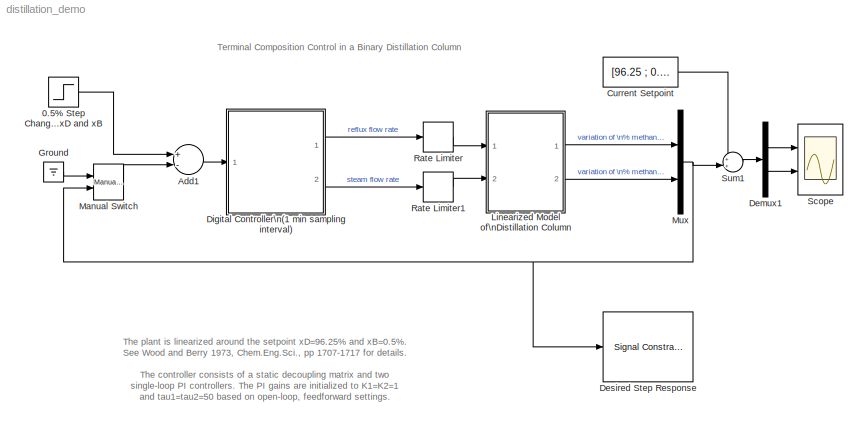
MODEL distillation_demo
KIND model
CONFIG PreLoadFcn = load distillation_demo
BLOCK [Step] 0.5% Step Change\nin xD and xB
  After = 0.5
  SampleTime = 0
  Time = 0
BLOCK [Sum] Add1
  InputSameDT = off
  Inputs = +-
  OutDataTypeMode = Inherit via internal rule
  OutScaling = 2^-10
  Ports = [2, 1]
  SaturateOnIntegerOverflow = off
BLOCK [Constant] Current Setpoint
  SampleTime = 0
  Value = [96.25 ; 0.5]
BLOCK [Demux] Demux1
  DisplayOption = bar
  Outputs = 2
  Ports = [1, 2]
BLOCK [Reference] Desired Step Response  REF=srolib/Signal Constraint  (lib defined in mdl_d992e5ea460a)
  DialogPosition = [0.040625 0.309166666666667 0.39 0.278333333333333]
  LogID = SRO_DataLog_1
  Ports = [1]
  SaveAs = distillation_optim
  SaveIn = workspace
  ShowPortLabels = on
  SourceBlock = srolib/Signal Constraint
  SourceType = Signal Constraint
  Ylim = [-0.2 0.8]
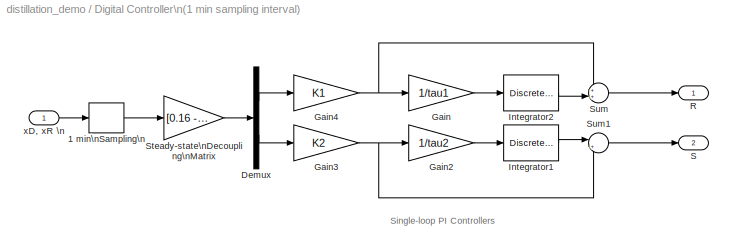
BLOCK [SubSystem] Digital Controller\n(1 min sampling interval)
  MinAlgLoopOccurrences = off
  Ports = [1, 2]
  PropExecContextAcrossSSBoundary = on
  RTWSystemCode = Auto
  TreatAsAtomicUnit = off
BLOCK [ZeroOrderHold] Digital Controller\n(1 min sampling interval)/1 min\nSampling\n
BLOCK [Demux] Digital Controller\n(1 min sampling interval)/Demux
  DisplayOption = bar
  Outputs = 2
  Ports = [1, 2]
BLOCK [Gain] Digital Controller\n(1 min sampling interval)/Gain
  Gain = 1/tau1
  OutDataTypeMode = Inherit via internal rule
  ParameterDataTypeMode = Inherit via internal rule
  SaturateOnIntegerOverflow = off
BLOCK [Gain] Digital Controller\n(1 min sampling interval)/Gain2
  Gain = 1/tau2
  OutDataTypeMode = Inherit via internal rule
  ParameterDataTypeMode = Inherit via internal rule
  SaturateOnIntegerOverflow = off
BLOCK [Gain] Digital Controller\n(1 min sampling interval)/Gain3
  Gain = K2
  OutDataTypeMode = Inherit via internal rule
  ParameterDataTypeMode = Inherit via internal rule
  SaturateOnIntegerOverflow = off
BLOCK [Gain] Digital Controller\n(1 min sampling interval)/Gain4
  Gain = K1
  OutDataTypeMode = Inherit via internal rule
  ParameterDataTypeMode = Inherit via internal rule
  SaturateOnIntegerOverflow = off
BLOCK [DiscreteIntegrator] Digital Controller\n(1 min sampling interval)/Integrator1
  ExternalReset = none
  ICPrevOutput = DiscIntNeverNeededParam
  ICPrevScaledInput = DiscIntNeverNeededParam
  InitialConditionSource = internal
  IntegratorMethod = Integration: Trapezoidal
  Ports = [1, 1]
  SaturateOnIntegerOverflow = on
BLOCK [DiscreteIntegrator] Digital Controller\n(1 min sampling interval)/Integrator2
  ExternalReset = none
  ICPrevOutput = DiscIntNeverNeededParam
  ICPrevScaledInput = DiscIntNeverNeededParam
  InitialConditionSource = internal
  IntegratorMethod = Integration: Trapezoidal
  Ports = [1, 1]
  SaturateOnIntegerOverflow = on
BLOCK [Outport] Digital Controller\n(1 min sampling interval)/R
  BusOutputAsStruct = off
  IconDisplay = Port number
BLOCK [Outport] Digital Controller\n(1 min sampling interval)/S
  BusOutputAsStruct = off
  IconDisplay = Port number
  Port = 2
BLOCK [Gain] Digital Controller\n(1 min sampling interval)/Steady-state\nDecoupling\nMatrix
  Gain = [0.16 -0.15 ; 0.05 -0.1]
  Multiplication = Matrix(K*u)
  OutDataTypeMode = Inherit via internal rule
  ParameterDataTypeMode = Inherit via internal rule
  SaturateOnIntegerOverflow = off
BLOCK [Sum] Digital Controller\n(1 min sampling interval)/Sum
  IconShape = round
  InputSameDT = off
  Inputs = ++|
  OutDataTypeMode = Inherit via internal rule
  Ports = [2, 1]
  SaturateOnIntegerOverflow = off
BLOCK [Sum] Digital Controller\n(1 min sampling interval)/Sum1
  IconShape = round
  InputSameDT = off
  Inputs = |++
  OutDataTypeMode = Inherit via internal rule
  Ports = [2, 1]
  SaturateOnIntegerOverflow = off
BLOCK [Inport] Digital Controller\n(1 min sampling interval)/xD, xR \n
  IconDisplay = Port number
  LatchInput = off
BLOCK [Ground] Ground
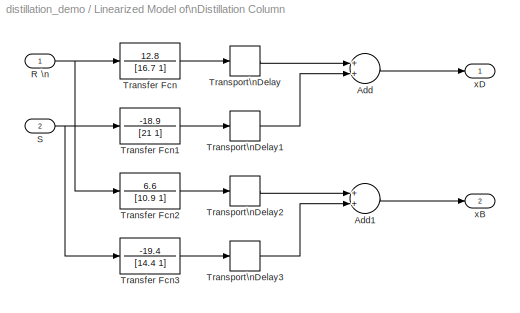
BLOCK [SubSystem] Linearized Model of\nDistillation Column
  MinAlgLoopOccurrences = off
  Ports = [2, 2]
  PropExecContextAcrossSSBoundary = on
  RTWSystemCode = Auto
  TreatAsAtomicUnit = off
BLOCK [Sum] Linearized Model of\nDistillation Column/Add
  InputSameDT = off
  OutDataTypeMode = Inherit via internal rule
  OutScaling = 2^-10
  Ports = [2, 1]
  SaturateOnIntegerOverflow = off
BLOCK [Sum] Linearized Model of\nDistillation Column/Add1
  InputSameDT = off
  OutDataTypeMode = Inherit via internal rule
  OutScaling = 2^-10
  Ports = [2, 1]
  SaturateOnIntegerOverflow = off
BLOCK [Inport] Linearized Model of\nDistillation Column/R \n
  IconDisplay = Port number
  LatchInput = off
BLOCK [Inport] Linearized Model of\nDistillation Column/S
  IconDisplay = Port number
  LatchInput = off
  Port = 2
BLOCK [TransferFcn] Linearized Model of\nDistillation Column/Transfer Fcn
  Denominator = [16.7 1]
  Numerator = 12.8
BLOCK [TransferFcn] Linearized Model of\nDistillation Column/Transfer Fcn1
  Denominator = [21 1]
  Numerator = -18.9
BLOCK [TransferFcn] Linearized Model of\nDistillation Column/Transfer Fcn2
  Denominator = [10.9 1]
  Numerator = 6.6
BLOCK [TransferFcn] Linearized Model of\nDistillation Column/Transfer Fcn3
  Denominator = [14.4 1]
  Numerator = -19.4
BLOCK [TransportDelay] Linearized Model of\nDistillation Column/Transport\nDelay
BLOCK [TransportDelay] Linearized Model of\nDistillation Column/Transport\nDelay1
  DelayTime = 3
BLOCK [TransportDelay] Linearized Model of\nDistillation Column/Transport\nDelay2
  DelayTime = 7
BLOCK [TransportDelay] Linearized Model of\nDistillation Column/Transport\nDelay3
  DelayTime = 3
BLOCK [Outport] Linearized Model of\nDistillation Column/xB
  BusOutputAsStruct = off
  IconDisplay = Port number
  Port = 2
BLOCK [Outport] Linearized Model of\nDistillation Column/xD
  BusOutputAsStruct = off
  IconDisplay = Port number
BLOCK [Reference] Manual Switch  REF=simulink/Signal\nRouting/Manual Switch
  Ports = [2, 1]
  ShowPortLabels = on
  SourceBlock = simulink/Signal\nRouting/Manual Switch
  SourceType = Manual Switch
  action = 0
  sw = 0
BLOCK [Mux] Mux
  DisplayOption = bar
  Inputs = 2
  Ports = [2, 1]
BLOCK [RateLimiter] Rate Limiter
  FallingSlewLimit = -0.015
  RisingSlewLimit = 0.015
  SampleTimeMode = inherited
BLOCK [RateLimiter] Rate Limiter1
  FallingSlewLimit = -0.015
  RisingSlewLimit = 0.015
  SampleTimeMode = inherited
BLOCK [Scope] Scope
  DataFormat = StructureWithTime
  NumInputPorts = 2
  Ports = [2]
  YMax = 5~5
  YMin = -5~-5
BLOCK [Sum] Sum1
  IconShape = round
  InputSameDT = off
  Inputs = ++|
  OutDataTypeMode = Inherit via internal rule
  Ports = [2, 1]
  SaturateOnIntegerOverflow = off
ANNOTATION (root): Terminal Composition Control in a Binary Distillation Column
ANNOTATION (root): The plant is linearized around the setpoint xD=96.25% and xB=0.5%.\nSee Wood and Berry 1973, Chem.Eng.Sci., pp 1707-1717 for details.\n\nThe controller consists of a static decoupling matrix and two \nsingle-loop PI controllers. The PI gains are initialized to K1=K2=1\nand tau1=tau2=50 based on open-loop, feedforward settings.\n\nDouble-click on the Desired Step Response block \nto optimize the PI...<+6ch>
ANNOTATION Digital Controller\n(1 min sampling interval): Single-loop PI Controllers
LINE 0.5% Step Change\nin xD and xB:1 -> Add1:1
LINE Add1:1 -> Digital Controller\n(1 min sampling interval):1
LINE Current Setpoint:1 -> Sum1:1
LINE Demux1:1 -> Scope:1
LINE Demux1:2 -> Scope:2
LINE Digital Controller\n(1 min sampling interval)/1 min\nSampling\n:1 -> Digital Controller\n(1 min sampling interval)/Steady-state\nDecoupling\nMatrix:1
LINE Digital Controller\n(1 min sampling interval)/Demux:1 -> Digital Controller\n(1 min sampling interval)/Gain4:1
LINE Digital Controller\n(1 min sampling interval)/Demux:2 -> Digital Controller\n(1 min sampling interval)/Gain3:1
LINE Digital Controller\n(1 min sampling interval)/Gain2:1 -> Digital Controller\n(1 min sampling interval)/Integrator1:1
NET Digital Controller\n(1 min sampling interval)/Gain3:1 -> Digital Controller\n(1 min sampling interval)/Gain2:1, Digital Controller\n(1 min sampling interval)/Sum1:2
NET Digital Controller\n(1 min sampling interval)/Gain4:1 -> Digital Controller\n(1 min sampling interval)/Gain:1, Digital Controller\n(1 min sampling interval)/Sum:1
LINE Digital Controller\n(1 min sampling interval)/Gain:1 -> Digital Controller\n(1 min sampling interval)/Integrator2:1
LINE Digital Controller\n(1 min sampling interval)/Integrator1:1 -> Digital Controller\n(1 min sampling interval)/Sum1:1
LINE Digital Controller\n(1 min sampling interval)/Integrator2:1 -> Digital Controller\n(1 min sampling interval)/Sum:2
LINE Digital Controller\n(1 min sampling interval)/Steady-state\nDecoupling\nMatrix:1 -> Digital Controller\n(1 min sampling interval)/Demux:1
LINE Digital Controller\n(1 min sampling interval)/Sum1:1 -> Digital Controller\n(1 min sampling interval)/S:1
LINE Digital Controller\n(1 min sampling interval)/Sum:1 -> Digital Controller\n(1 min sampling interval)/R:1
LINE Digital Controller\n(1 min sampling interval)/xD, xR \n:1 -> Digital Controller\n(1 min sampling interval)/1 min\nSampling\n:1
LINE Digital Controller\n(1 min sampling interval):1 -> Rate Limiter:1
LINE Digital Controller\n(1 min sampling interval):2 -> Rate Limiter1:1
LINE Ground:1 -> Manual Switch:1
LINE Linearized Model of\nDistillation Column/Add1:1 -> Linearized Model of\nDistillation Column/xB:1
LINE Linearized Model of\nDistillation Column/Add:1 -> Linearized Model of\nDistillation Column/xD:1
NET Linearized Model of\nDistillation Column/R \n:1 -> Linearized Model of\nDistillation Column/Transfer Fcn2:1, Linearized Model of\nDistillation Column/Transfer Fcn:1
NET Linearized Model of\nDistillation Column/S:1 -> Linearized Model of\nDistillation Column/Transfer Fcn1:1, Linearized Model of\nDistillation Column/Transfer Fcn3:1
LINE Linearized Model of\nDistillation Column/Transfer Fcn1:1 -> Linearized Model of\nDistillation Column/Transport\nDelay1:1
LINE Linearized Model of\nDistillation Column/Transfer Fcn2:1 -> Linearized Model of\nDistillation Column/Transport\nDelay2:1
LINE Linearized Model of\nDistillation Column/Transfer Fcn3:1 -> Linearized Model of\nDistillation Column/Transport\nDelay3:1
LINE Linearized Model of\nDistillation Column/Transfer Fcn:1 -> Linearized Model of\nDistillation Column/Transport\nDelay:1
LINE Linearized Model of\nDistillation Column/Transport\nDelay1:1 -> Linearized Model of\nDistillation Column/Add:2
LINE Linearized Model of\nDistillation Column/Transport\nDelay2:1 -> Linearized Model of\nDistillation Column/Add1:1
LINE Linearized Model of\nDistillation Column/Transport\nDelay3:1 -> Linearized Model of\nDistillation Column/Add1:2
LINE Linearized Model of\nDistillation Column/Transport\nDelay:1 -> Linearized Model of\nDistillation Column/Add:1
LINE Linearized Model of\nDistillation Column:1 -> Mux:1
LINE Linearized Model of\nDistillation Column:2 -> Mux:2
LINE Manual Switch:1 -> Add1:2
NET Mux:1 -> Desired Step Response:1, Manual Switch:2, Sum1:2
LINE Rate Limiter1:1 -> Linearized Model of\nDistillation Column:2
LINE Rate Limiter:1 -> Linearized Model of\nDistillation Column:1
LINE Sum1:1 -> Demux1:1
note: NET lines group one-source signal fan-out (src -> all destinations, sorted); 1:1 wires keep LINE
